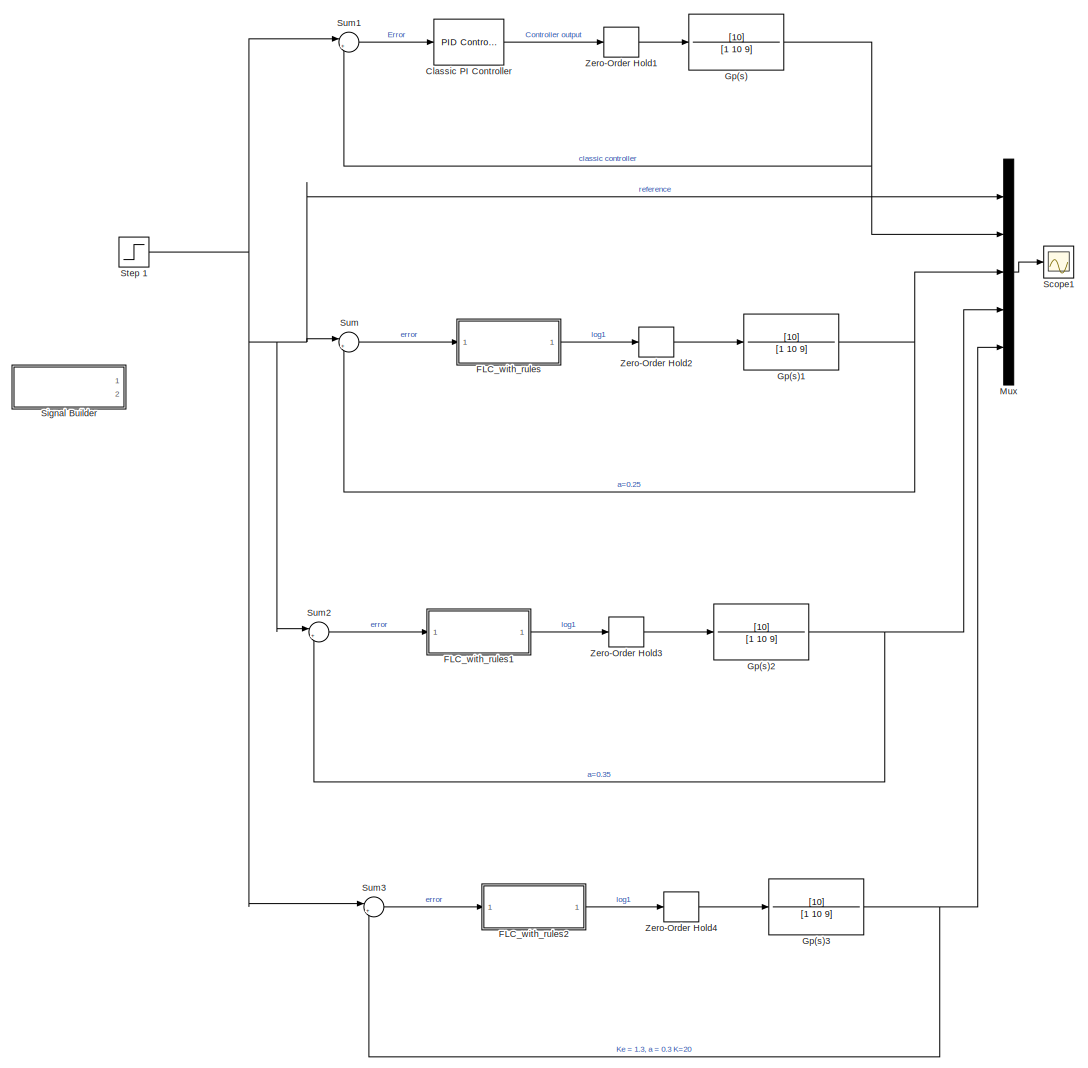
[diagram: root canvas - part 1/1, most of the canvas]
MODEL slx_3b54775cf5b1
KIND model
CONFIG AbsTol = auto
CONFIG EnableMultiTasking = off
CONFIG FixedStep = auto
CONFIG MaxStep = auto
CONFIG MinStep = auto
CONFIG RelTol = 1e-3
CONFIG SampleTimeConstraint = Unconstrained
CONFIG Solver = VariableStepAuto
CONFIG SolverName = VariableStepAuto
CONFIG StartTime = 0.0
CONFIG StopTime = 20.0
BLOCK [Reference] Classic PI Controller  REF=simulink/Continuous/PID Controller
  Ports = [1, 1]
  SourceBlock = simulink/Continuous/PID Controller
  SourceProductBaseCode = SL
  SourceType = PID 1dof
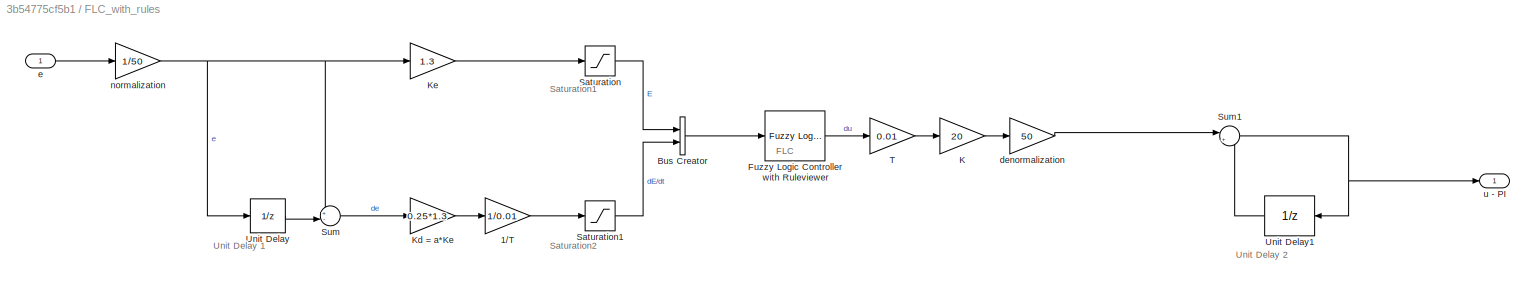
BLOCK [SubSystem] FLC_with_rules
  Ports = [1, 1]
  RequestExecContextInheritance = off
BLOCK [Gain] FLC_with_rules/1//T
  Gain = 1/0.01
BLOCK [BusCreator] FLC_with_rules/Bus Creator
  DisplayOption = bar
  InheritFromInputs = on
  Inputs = 2
  Ports = [2, 1]
BLOCK [Reference] FLC_with_rules/Fuzzy Logic Controller with Ruleviewer  REF=fuzblock/Fuzzy Logic   (lib defined in mdl_858b3b3e7478)
Controller 
with Ruleviewer
  Ports = [1, 1]
  SourceBlock = fuzblock/Fuzzy Logic \nController \nwith Ruleviewer
  SourceProductBaseCode = FL
  SourceType = Fuzzy Inference System
BLOCK [Gain] FLC_with_rules/K
  Gain = 20
BLOCK [Gain] FLC_with_rules/Kd = a*Ke
  Gain = 0.25*1.3
BLOCK [Gain] FLC_with_rules/Ke
  Gain = 1.3
BLOCK [Saturate] FLC_with_rules/Saturation
  LowerLimit = -1
  UpperLimit = 1
BLOCK [Saturate] FLC_with_rules/Saturation1
  LowerLimit = -1
  UpperLimit = 1
BLOCK [Sum] FLC_with_rules/Sum
  Inputs = +-|
  Ports = [2, 1]
BLOCK [Sum] FLC_with_rules/Sum1
  Inputs = |++
  Ports = [2, 1]
BLOCK [Gain] FLC_with_rules/T
  Gain = 0.01
BLOCK [UnitDelay] FLC_with_rules/Unit Delay
  HasFrameUpgradeWarning = on
  SampleTime = -1
BLOCK [UnitDelay] FLC_with_rules/Unit Delay1
  HasFrameUpgradeWarning = on
  SampleTime = -1
BLOCK [Gain] FLC_with_rules/denormalization
  Gain = 50
BLOCK [Inport] FLC_with_rules/e
BLOCK [Gain] FLC_with_rules/normalization
  Gain = 1/50
BLOCK [Outport] FLC_with_rules/u - PI
  VectorParamsAs1DForOutWhenUnconnected = off
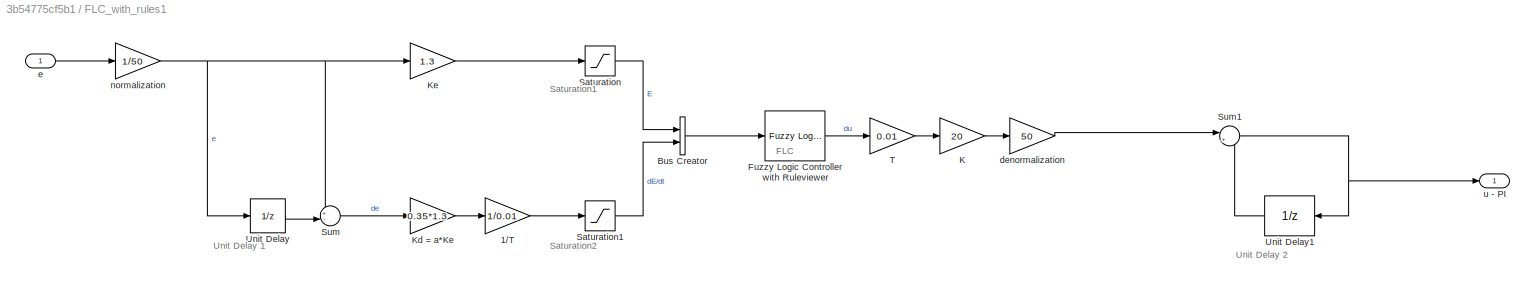
BLOCK [SubSystem] FLC_with_rules1
  Ports = [1, 1]
  RequestExecContextInheritance = off
BLOCK [Gain] FLC_with_rules1/1//T
  Gain = 1/0.01
BLOCK [BusCreator] FLC_with_rules1/Bus Creator
  DisplayOption = bar
  InheritFromInputs = on
  Inputs = 2
  Ports = [2, 1]
BLOCK [Reference] FLC_with_rules1/Fuzzy Logic Controller with Ruleviewer  REF=fuzblock/Fuzzy Logic   (lib defined in mdl_858b3b3e7478)
Controller 
with Ruleviewer
  Ports = [1, 1]
  SourceBlock = fuzblock/Fuzzy Logic \nController \nwith Ruleviewer
  SourceProductBaseCode = FL
  SourceType = Fuzzy Inference System
BLOCK [Gain] FLC_with_rules1/K
  Gain = 20
BLOCK [Gain] FLC_with_rules1/Kd = a*Ke
  Gain = 0.35*1.3
BLOCK [Gain] FLC_with_rules1/Ke
  Gain = 1.3
BLOCK [Saturate] FLC_with_rules1/Saturation
  LowerLimit = -1
  UpperLimit = 1
BLOCK [Saturate] FLC_with_rules1/Saturation1
  LowerLimit = -1
  UpperLimit = 1
BLOCK [Sum] FLC_with_rules1/Sum
  Inputs = +-|
  Ports = [2, 1]
BLOCK [Sum] FLC_with_rules1/Sum1
  Inputs = |++
  Ports = [2, 1]
BLOCK [Gain] FLC_with_rules1/T
  Gain = 0.01
BLOCK [UnitDelay] FLC_with_rules1/Unit Delay
  HasFrameUpgradeWarning = on
  SampleTime = -1
BLOCK [UnitDelay] FLC_with_rules1/Unit Delay1
  HasFrameUpgradeWarning = on
  SampleTime = -1
BLOCK [Gain] FLC_with_rules1/denormalization
  Gain = 50
BLOCK [Inport] FLC_with_rules1/e
BLOCK [Gain] FLC_with_rules1/normalization
  Gain = 1/50
BLOCK [Outport] FLC_with_rules1/u - PI
  VectorParamsAs1DForOutWhenUnconnected = off
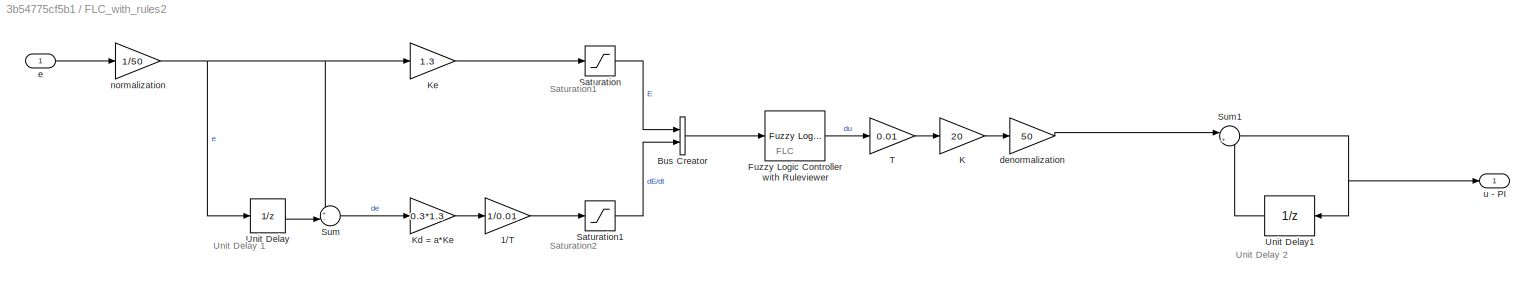
BLOCK [SubSystem] FLC_with_rules2
  Ports = [1, 1]
  RequestExecContextInheritance = off
BLOCK [Gain] FLC_with_rules2/1//T
  Gain = 1/0.01
BLOCK [BusCreator] FLC_with_rules2/Bus Creator
  DisplayOption = bar
  InheritFromInputs = on
  Inputs = 2
  Ports = [2, 1]
BLOCK [Reference] FLC_with_rules2/Fuzzy Logic Controller with Ruleviewer  REF=fuzblock/Fuzzy Logic   (lib defined in mdl_858b3b3e7478)
Controller 
with Ruleviewer
  Ports = [1, 1]
  SourceBlock = fuzblock/Fuzzy Logic \nController \nwith Ruleviewer
  SourceProductBaseCode = FL
  SourceType = Fuzzy Inference System
BLOCK [Gain] FLC_with_rules2/K
  Gain = 20
BLOCK [Gain] FLC_with_rules2/Kd = a*Ke
  Gain = 0.3*1.3
BLOCK [Gain] FLC_with_rules2/Ke
  Gain = 1.3
BLOCK [Saturate] FLC_with_rules2/Saturation
  LowerLimit = -1
  UpperLimit = 1
BLOCK [Saturate] FLC_with_rules2/Saturation1
  LowerLimit = -1
  UpperLimit = 1
BLOCK [Sum] FLC_with_rules2/Sum
  Inputs = +-|
  Ports = [2, 1]
BLOCK [Sum] FLC_with_rules2/Sum1
  Inputs = |++
  Ports = [2, 1]
BLOCK [Gain] FLC_with_rules2/T
  Gain = 0.01
BLOCK [UnitDelay] FLC_with_rules2/Unit Delay
  HasFrameUpgradeWarning = on
  SampleTime = -1
BLOCK [UnitDelay] FLC_with_rules2/Unit Delay1
  HasFrameUpgradeWarning = on
  SampleTime = -1
BLOCK [Gain] FLC_with_rules2/denormalization
  Gain = 50
BLOCK [Inport] FLC_with_rules2/e
BLOCK [Gain] FLC_with_rules2/normalization
  Gain = 1/50
BLOCK [Outport] FLC_with_rules2/u - PI
  VectorParamsAs1DForOutWhenUnconnected = off
BLOCK [TransferFcn] Gp(s)
  Denominator = [1 10 9]
  Numerator = [10]
BLOCK [TransferFcn] Gp(s)1
  Denominator = [1 10 9]
  Numerator = [10]
BLOCK [TransferFcn] Gp(s)2
  Denominator = [1 10 9]
  Numerator = [10]
BLOCK [TransferFcn] Gp(s)3
  Denominator = [1 10 9]
  Numerator = [10]
BLOCK [Mux] Mux
  DisplayOption = bar
  Inputs = 5
  Ports = [5, 1]
BLOCK [Scope] Scope1
  Floating = off
  NumInputPorts = 1
  Ports = [1]
  ScopeSpecificationString = Simulink.scopes.TimeScopeBlockCfg('CurrentConfiguration', extmgr.ConfigurationSet(extmgr.Configuration('Core','General UI',true),extmgr.Configuration('Core','Source UI',true),extmgr.Configuration('Sources','WiredSimulink',true,'DataLogging',true,'DataLoggingVariableName','ScopeData1'),extmgr.Configuration('Visuals','Time Domain',true,'SerializedDisplays',{struct('MinYLimReal','-8.3792','MaxYLimRea...<+1976ch>
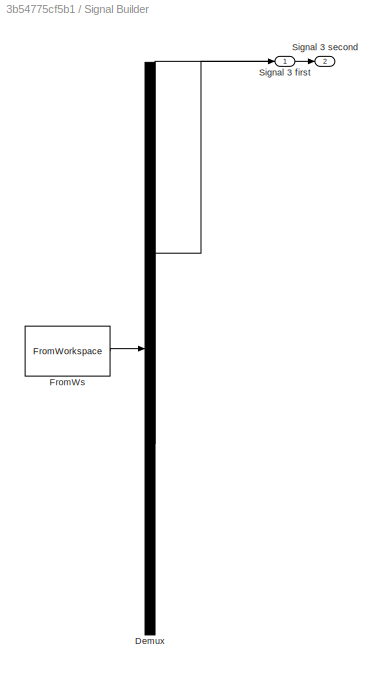
BLOCK [SubSystem] Signal Builder
  ClipboardFcn = sigbuilder_block('clipboard');
  CloseFcn = sigbuilder_block('close');
  ContinueFcn = sigbuilder_block('continue');
  CopyFcn = sigbuilder_block('copy');
  DeleteFcn = sigbuilder_block('delete');
  LoadFcn = sigbuilder_block('load');
  MaskHideContents = on
  ModelCloseFcn = sigbuilder_block('modelClose');
  NameChangeFcn = sigbuilder_block('namechange');
  OpenFcn = sigbuilder_block('open',[540.75 168.75 550.5 399.75 ]);
  PauseFcn = sigbuilder_block('pause');
  Ports = [0, 2]
  PreSaveFcn = sigbuilder_block('preSave');
  RequestExecContextInheritance = off
  StartFcn = sigbuilder_block('start');
  StopFcn = sigbuilder_block('stop');
  Tag = STV Subsys
BLOCK [Demux] Signal Builder/Demux
  DisplayOption = none
  Outputs = 2
  Ports = [1, 2]
  Tag = STV Demux
BLOCK [FromWorkspace] Signal Builder/FromWs
  Tag = STV FromWs
  VariableName = tuvar
BLOCK [Outport] Signal Builder/Signal 3 first
  Tag = STV Outport
BLOCK [Outport] Signal Builder/Signal 3 second
  Port = 2
  Tag = STV Outport
BLOCK [Step] Step 1
  After = 50
  SampleTime = 0.01
  Time = 0
BLOCK [Sum] Sum
  Inputs = |+-
  Ports = [2, 1]
BLOCK [Sum] Sum1
  Inputs = |+-
  Ports = [2, 1]
BLOCK [Sum] Sum2
  Inputs = |+-
  Ports = [2, 1]
BLOCK [Sum] Sum3
  Inputs = |+-
  Ports = [2, 1]
BLOCK [ZeroOrderHold] Zero-Order Hold1
  SampleTime = 0.01
BLOCK [ZeroOrderHold] Zero-Order Hold2
  SampleTime = 0.01
BLOCK [ZeroOrderHold] Zero-Order Hold3
  SampleTime = 0.01
BLOCK [ZeroOrderHold] Zero-Order Hold4
  SampleTime = 0.01
ANNOTATION FLC_with_rules: FLC
ANNOTATION FLC_with_rules: Saturation1
ANNOTATION FLC_with_rules: Saturation2
ANNOTATION FLC_with_rules: Unit Delay 1
ANNOTATION FLC_with_rules: Unit Delay 2
ANNOTATION FLC_with_rules1: FLC
ANNOTATION FLC_with_rules1: Saturation1
ANNOTATION FLC_with_rules1: Saturation2
ANNOTATION FLC_with_rules1: Unit Delay 1
ANNOTATION FLC_with_rules1: Unit Delay 2
ANNOTATION FLC_with_rules2: FLC
ANNOTATION FLC_with_rules2: Saturation1
ANNOTATION FLC_with_rules2: Saturation2
ANNOTATION FLC_with_rules2: Unit Delay 1
ANNOTATION FLC_with_rules2: Unit Delay 2
LINE Classic PI Controller:1 -> Zero-Order Hold1:1
LINE FLC_with_rules/1//T:1 -> FLC_with_rules/Saturation1:1
LINE FLC_with_rules/Bus Creator:1 -> FLC_with_rules/Fuzzy Logic Controller with Ruleviewer:1
LINE FLC_with_rules/Fuzzy Logic Controller with Ruleviewer:1 -> FLC_with_rules/T:1
LINE FLC_with_rules/K:1 -> FLC_with_rules/denormalization:1
LINE FLC_with_rules/Kd = a*Ke:1 -> FLC_with_rules/1//T:1
LINE FLC_with_rules/Ke:1 -> FLC_with_rules/Saturation:1
LINE FLC_with_rules/Saturation1:1 -> FLC_with_rules/Bus Creator:2
LINE FLC_with_rules/Saturation:1 -> FLC_with_rules/Bus Creator:1
NET FLC_with_rules/Sum1:1 -> FLC_with_rules/Unit Delay1:1, FLC_with_rules/u - PI:1
LINE FLC_with_rules/Sum:1 -> FLC_with_rules/Kd = a*Ke:1
LINE FLC_with_rules/T:1 -> FLC_with_rules/K:1
LINE FLC_with_rules/Unit Delay1:1 -> FLC_with_rules/Sum1:2
LINE FLC_with_rules/Unit Delay:1 -> FLC_with_rules/Sum:2
LINE FLC_with_rules/denormalization:1 -> FLC_with_rules/Sum1:1
LINE FLC_with_rules/e:1 -> FLC_with_rules/normalization:1
NET FLC_with_rules/normalization:1 -> FLC_with_rules/Ke:1, FLC_with_rules/Sum:1, FLC_with_rules/Unit Delay:1
LINE FLC_with_rules1/1//T:1 -> FLC_with_rules1/Saturation1:1
LINE FLC_with_rules1/Bus Creator:1 -> FLC_with_rules1/Fuzzy Logic Controller with Ruleviewer:1
LINE FLC_with_rules1/Fuzzy Logic Controller with Ruleviewer:1 -> FLC_with_rules1/T:1
LINE FLC_with_rules1/K:1 -> FLC_with_rules1/denormalization:1
LINE FLC_with_rules1/Kd = a*Ke:1 -> FLC_with_rules1/1//T:1
LINE FLC_with_rules1/Ke:1 -> FLC_with_rules1/Saturation:1
LINE FLC_with_rules1/Saturation1:1 -> FLC_with_rules1/Bus Creator:2
LINE FLC_with_rules1/Saturation:1 -> FLC_with_rules1/Bus Creator:1
NET FLC_with_rules1/Sum1:1 -> FLC_with_rules1/Unit Delay1:1, FLC_with_rules1/u - PI:1
LINE FLC_with_rules1/Sum:1 -> FLC_with_rules1/Kd = a*Ke:1
LINE FLC_with_rules1/T:1 -> FLC_with_rules1/K:1
LINE FLC_with_rules1/Unit Delay1:1 -> FLC_with_rules1/Sum1:2
LINE FLC_with_rules1/Unit Delay:1 -> FLC_with_rules1/Sum:2
LINE FLC_with_rules1/denormalization:1 -> FLC_with_rules1/Sum1:1
LINE FLC_with_rules1/e:1 -> FLC_with_rules1/normalization:1
NET FLC_with_rules1/normalization:1 -> FLC_with_rules1/Ke:1, FLC_with_rules1/Sum:1, FLC_with_rules1/Unit Delay:1
LINE FLC_with_rules1:1 -> Zero-Order Hold3:1
LINE FLC_with_rules2/1//T:1 -> FLC_with_rules2/Saturation1:1
LINE FLC_with_rules2/Bus Creator:1 -> FLC_with_rules2/Fuzzy Logic Controller with Ruleviewer:1
LINE FLC_with_rules2/Fuzzy Logic Controller with Ruleviewer:1 -> FLC_with_rules2/T:1
LINE FLC_with_rules2/K:1 -> FLC_with_rules2/denormalization:1
LINE FLC_with_rules2/Kd = a*Ke:1 -> FLC_with_rules2/1//T:1
LINE FLC_with_rules2/Ke:1 -> FLC_with_rules2/Saturation:1
LINE FLC_with_rules2/Saturation1:1 -> FLC_with_rules2/Bus Creator:2
LINE FLC_with_rules2/Saturation:1 -> FLC_with_rules2/Bus Creator:1
NET FLC_with_rules2/Sum1:1 -> FLC_with_rules2/Unit Delay1:1, FLC_with_rules2/u - PI:1
LINE FLC_with_rules2/Sum:1 -> FLC_with_rules2/Kd = a*Ke:1
LINE FLC_with_rules2/T:1 -> FLC_with_rules2/K:1
LINE FLC_with_rules2/Unit Delay1:1 -> FLC_with_rules2/Sum1:2
LINE FLC_with_rules2/Unit Delay:1 -> FLC_with_rules2/Sum:2
LINE FLC_with_rules2/denormalization:1 -> FLC_with_rules2/Sum1:1
LINE FLC_with_rules2/e:1 -> FLC_with_rules2/normalization:1
NET FLC_with_rules2/normalization:1 -> FLC_with_rules2/Ke:1, FLC_with_rules2/Sum:1, FLC_with_rules2/Unit Delay:1
LINE FLC_with_rules2:1 -> Zero-Order Hold4:1
LINE FLC_with_rules:1 -> Zero-Order Hold2:1
NET Gp(s)1:1 -> Mux:3, Sum:2
NET Gp(s)2:1 -> Mux:4, Sum2:2
NET Gp(s)3:1 -> Mux:5, Sum3:2
NET Gp(s):1 -> Mux:2, Sum1:2
LINE Mux:1 -> Scope1:1
NET Step 1:1 -> Mux:1, Sum1:1, Sum2:1, Sum3:1, Sum:1
LINE Sum1:1 -> Classic PI Controller:1
LINE Sum2:1 -> FLC_with_rules1:1
LINE Sum3:1 -> FLC_with_rules2:1
LINE Sum:1 -> FLC_with_rules:1
LINE Zero-Order Hold1:1 -> Gp(s):1
LINE Zero-Order Hold2:1 -> Gp(s)1:1
LINE Zero-Order Hold3:1 -> Gp(s)2:1
LINE Zero-Order Hold4:1 -> Gp(s)3:1
note: NET lines group one-source signal fan-out (src -> all destinations, sorted); 1:1 wires keep LINE
